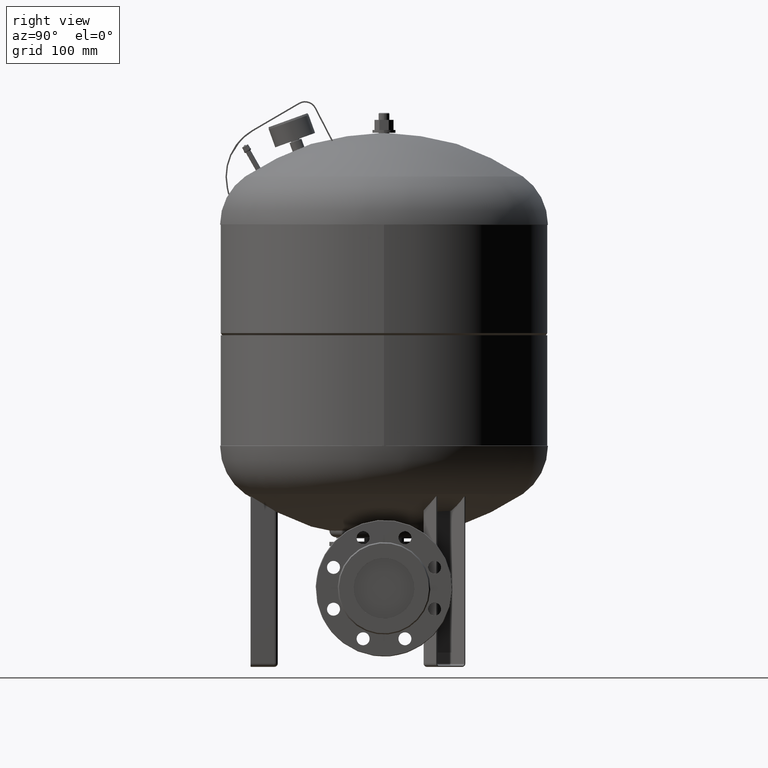
[diagram: clean part render]
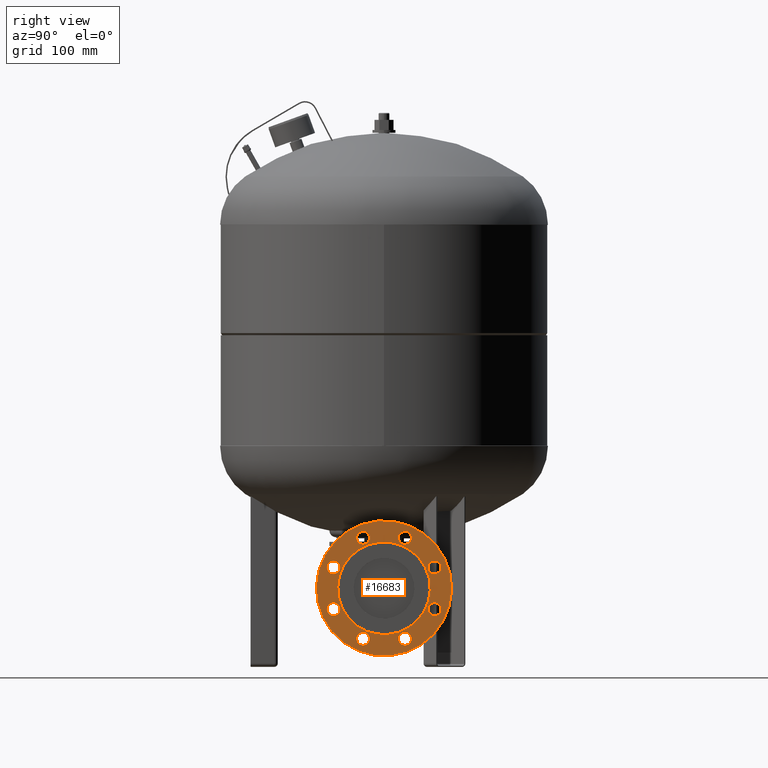
[diagram: same view with one face highlighted and labeled with its STEP entity id]
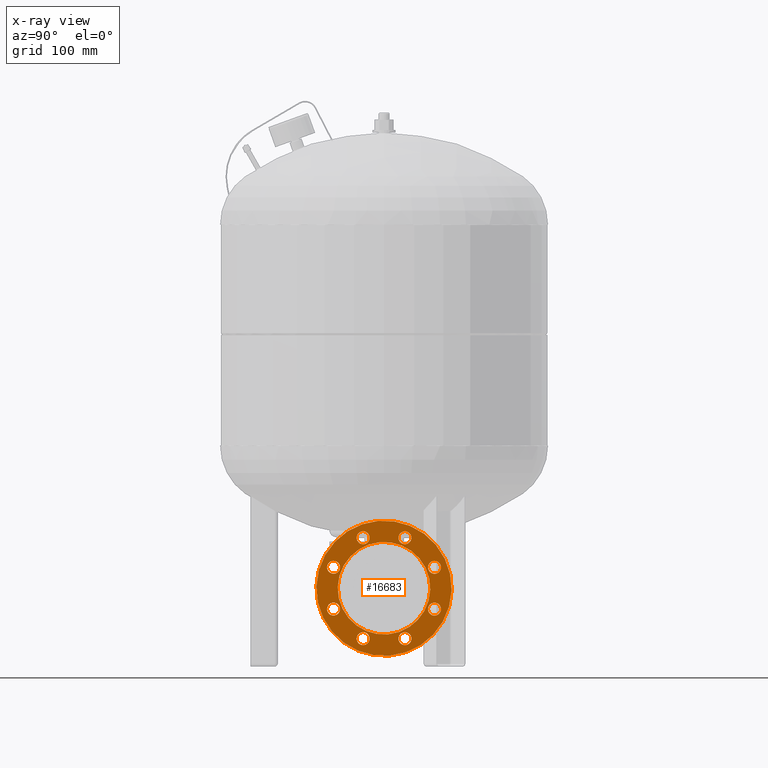
[diagram: x-ray of the same camera — body ghosted, the highlighted face saturated]
A machine part, right view. The second image highlights one B-rep face of the part: STEP entity #16683.
The next image is the same camera in x-ray: the body ghosted, the highlighted face saturated — about 0% of this face is hidden behind the body in this view.
In plain terms, the highlighted planar face has unit normal (1, 0, 0).
Its self-contained STEP definition (entity closure, byte-faithful):
#15883=CARTESIAN_POINT('',(212.0,-25.919933684167113,52.423744563872539));
#15884=VERTEX_POINT('',#15883);
#15893=CARTESIAN_POINT('',(212.0,25.919933684167116,177.576255436127440));
#15894=VERTEX_POINT('',#15893);
#15895=CARTESIAN_POINT('',(212.0,2.108865E-016,115.0));
#15896=DIRECTION('',(1.0,-7.029548E-017,-1.697083E-016));
#15897=DIRECTION('',(-1.836910E-016,-0.382683432365090,-0.923879532511287));
#15898=AXIS2_PLACEMENT_3D('',#15895,#15896,#15897);
#15899=CIRCLE('',#15898,67.732050807568882);
#15900=EDGE_CURVE('',#15884,#15894,#15899,.T.);
#15927=CARTESIAN_POINT('',(212.0,-34.250167196675491,180.133507042045720));
#15928=VERTEX_POINT('',#15927);
#15944=CARTESIAN_POINT('',(212.0,-26.979181981738783,197.687218159760160));
#15945=VERTEX_POINT('',#15944);
#15952=CARTESIAN_POINT('',(212.0,-30.614674589207137,188.910362600902940));
#15953=DIRECTION('',(-1.000000000000000,7.029548E-017,1.697083E-016));
#15954=DIRECTION('',(-1.836910E-016,-0.382683432365090,-0.923879532511287));
#15955=AXIS2_PLACEMENT_3D('',#15952,#15953,#15954);
#15956=CIRCLE('',#15955,9.500000000000000);
#15957=EDGE_CURVE('',#15928,#15945,#15956,.T.);
#15969=CARTESIAN_POINT('',(212.0,-77.545855208371279,136.837819030350000));
#15970=VERTEX_POINT('',#15969);
#15986=CARTESIAN_POINT('',(212.0,-70.274869993434578,154.391530148064450));
#15987=VERTEX_POINT('',#15986);
#15994=CARTESIAN_POINT('',(212.0,-73.910362600902928,145.614674589207230));
#15995=DIRECTION('',(-1.000000000000000,7.029548E-017,1.697083E-016));
#15996=DIRECTION('',(-1.836910E-016,-0.382683432365090,-0.923879532511287));
#15997=AXIS2_PLACEMENT_3D('',#15994,#15995,#15996);
#15998=CIRCLE('',#15997,9.500000000000000);
#15999=EDGE_CURVE('',#15970,#15987,#15998,.T.);
#16011=CARTESIAN_POINT('',(212.0,-77.545855208371307,75.608469851935624));
#16012=VERTEX_POINT('',#16011);
#16028=CARTESIAN_POINT('',(212.0,-70.274869993434606,93.162180969650080));
#16029=VERTEX_POINT('',#16028);
#16036=CARTESIAN_POINT('',(212.0,-73.910362600902957,84.385325410792859));
#16037=DIRECTION('',(-1.000000000000000,7.029548E-017,1.697083E-016));
#16038=DIRECTION('',(-1.836910E-016,-0.382683432365090,-0.923879532511287));
#16039=AXIS2_PLACEMENT_3D('',#16036,#16037,#16038);
#16040=CIRCLE('',#16039,9.500000000000000);
#16041=EDGE_CURVE('',#16012,#16029,#16040,.T.);
#16053=CARTESIAN_POINT('',(211.999999999999970,-34.250167196675619,32.312781840239865));
#16054=VERTEX_POINT('',#16053);
#16070=CARTESIAN_POINT('',(212.0,-26.979181981738918,49.866492957954307));
#16071=VERTEX_POINT('',#16070);
#16078=CARTESIAN_POINT('',(212.0,-30.614674589207269,41.089637399097086));
#16079=DIRECTION('',(-1.000000000000000,7.029548E-017,1.697083E-016));
#16080=DIRECTION('',(-1.836910E-016,-0.382683432365090,-0.923879532511287));
#16081=AXIS2_PLACEMENT_3D('',#16078,#16079,#16080);
#16082=CIRCLE('',#16081,9.500000000000000);
#16083=EDGE_CURVE('',#16054,#16071,#16082,.T.);
#16095=CARTESIAN_POINT('',(212.0,26.979181981738751,32.312781840239808));
#16096=VERTEX_POINT('',#16095);
#16112=CARTESIAN_POINT('',(212.0,34.250167196675456,49.866492957954250));
#16113=VERTEX_POINT('',#16112);
#16120=CARTESIAN_POINT('',(212.0,30.614674589207102,41.089637399097029));
#16121=DIRECTION('',(-1.000000000000000,7.029548E-017,1.697083E-016));
#16122=DIRECTION('',(-1.836910E-016,-0.382683432365090,-0.923879532511287));
#16123=AXIS2_PLACEMENT_3D('',#16120,#16121,#16122);
#16124=CIRCLE('',#16123,9.500000000000000);
#16125=EDGE_CURVE('',#16096,#16113,#16124,.T.);
#16137=CARTESIAN_POINT('',(212.0,70.274869993434592,75.608469851935581));
#16138=VERTEX_POINT('',#16137);
#16154=CARTESIAN_POINT('',(212.0,77.545855208371293,93.162180969650038));
#16155=VERTEX_POINT('',#16154);
#16162=CARTESIAN_POINT('',(212.0,73.910362600902943,84.385325410792817));
#16163=DIRECTION('',(-1.000000000000000,7.029548E-017,1.697083E-016));
#16164=DIRECTION('',(-1.836910E-016,-0.382683432365090,-0.923879532511287));
#16165=AXIS2_PLACEMENT_3D('',#16162,#16163,#16164);
#16166=CIRCLE('',#16165,9.500000000000000);
#16167=EDGE_CURVE('',#16138,#16155,#16166,.T.);
#16179=CARTESIAN_POINT('',(212.0,70.274869993434592,136.837819030349950));
#16180=VERTEX_POINT('',#16179);
#16196=CARTESIAN_POINT('',(212.0,77.545855208371293,154.391530148064390));
#16197=VERTEX_POINT('',#16196);
#16204=CARTESIAN_POINT('',(212.0,73.910362600902943,145.614674589207170));
#16205=DIRECTION('',(-1.000000000000000,7.029548E-017,1.697083E-016));
#16206=DIRECTION('',(-1.836910E-016,-0.382683432365090,-0.923879532511287));
#16207=AXIS2_PLACEMENT_3D('',#16204,#16205,#16206);
#16208=CIRCLE('',#16207,9.500000000000000);
#16209=EDGE_CURVE('',#16180,#16197,#16208,.T.);
#16221=CARTESIAN_POINT('',(212.0,26.979181981738854,180.133507042045720));
#16222=VERTEX_POINT('',#16221);
#16238=CARTESIAN_POINT('',(212.0,34.250167196675562,197.687218159760160));
#16239=VERTEX_POINT('',#16238);
#16246=CARTESIAN_POINT('',(212.0,30.614674589207208,188.910362600902940));
#16247=DIRECTION('',(-1.000000000000000,7.029548E-017,1.697083E-016));
#16248=DIRECTION('',(-1.836910E-016,-0.382683432365090,-0.923879532511287));
#16249=AXIS2_PLACEMENT_3D('',#16246,#16247,#16248);
#16250=CIRCLE('',#16249,9.500000000000000);
#16251=EDGE_CURVE('',#16222,#16239,#16250,.T.);
#16314=CARTESIAN_POINT('',(212.000000000000030,37.885659804143884,206.464073718617390));
#16315=VERTEX_POINT('',#16314);
#16332=CARTESIAN_POINT('',(211.999999999999970,-37.885659804143891,23.535926281382615));
#16333=VERTEX_POINT('',#16332);
#16341=CARTESIAN_POINT('',(212.0,2.108865E-016,115.0));
#16342=DIRECTION('',(-1.0,7.029548E-017,1.697083E-016));
#16343=DIRECTION('',(1.836910E-016,0.382683432365096,0.923879532511284));
#16344=AXIS2_PLACEMENT_3D('',#16341,#16342,#16343);
#16345=CIRCLE('',#16344,98.999999999999986);
#16346=EDGE_CURVE('',#16333,#16315,#16345,.T.);
#16572=CARTESIAN_POINT('',(212.0,2.108865E-016,115.0));
#16573=DIRECTION('',(-1.0,7.029548E-017,1.697083E-016));
#16574=DIRECTION('',(1.836910E-016,0.382683432365096,0.923879532511284));
#16575=AXIS2_PLACEMENT_3D('',#16572,#16573,#16574);
#16576=CIRCLE('',#16575,98.999999999999986);
#16577=EDGE_CURVE('',#16315,#16333,#16576,.T.);
#16584=CARTESIAN_POINT('',(211.999999999999970,-38.268343236508976,22.612046748871322));
#16585=DIRECTION('',(1.0,0.0,0.0));
#16586=DIRECTION('',(0.0,-0.382683432365090,-0.923879532511287));
#16587=AXIS2_PLACEMENT_3D('',#16584,#16585,#16586);
#16588=PLANE('',#16587);
#16589=ORIENTED_EDGE('',*,*,#16346,.F.);
#16590=ORIENTED_EDGE('',*,*,#16577,.F.);
#16591=EDGE_LOOP('',(#16589,#16590));
#16592=FACE_OUTER_BOUND('',#16591,.T.);
#16593=ORIENTED_EDGE('',*,*,#15900,.F.);
#16594=CARTESIAN_POINT('',(212.0,2.108865E-016,115.0));
#16595=DIRECTION('',(1.0,-7.029548E-017,-1.697083E-016));
#16596=DIRECTION('',(-1.836910E-016,-0.382683432365090,-0.923879532511287));
#16597=AXIS2_PLACEMENT_3D('',#16594,#16595,#16596);
#16598=CIRCLE('',#16597,67.732050807568882);
#16599=EDGE_CURVE('',#15894,#15884,#16598,.T.);
#16600=ORIENTED_EDGE('',*,*,#16599,.F.);
#16601=EDGE_LOOP('',(#16593,#16600));
#16602=FACE_BOUND('',#16601,.T.);
#16603=ORIENTED_EDGE('',*,*,#15957,.T.);
#16604=CARTESIAN_POINT('',(212.0,-30.614674589207137,188.910362600902940));
#16605=DIRECTION('',(-1.000000000000000,7.029548E-017,1.697083E-016));
#16606=DIRECTION('',(-1.836910E-016,-0.382683432365090,-0.923879532511287));
#16607=AXIS2_PLACEMENT_3D('',#16604,#16605,#16606);
#16608=CIRCLE('',#16607,9.500000000000000);
#16609=EDGE_CURVE('',#15945,#15928,#16608,.T.);
#16610=ORIENTED_EDGE('',*,*,#16609,.T.);
#16611=EDGE_LOOP('',(#16603,#16610));
#16612=FACE_BOUND('',#16611,.T.);
#16613=ORIENTED_EDGE('',*,*,#15999,.T.);
#16614=CARTESIAN_POINT('',(212.0,-73.910362600902928,145.614674589207230));
#16615=DIRECTION('',(-1.000000000000000,7.029548E-017,1.697083E-016));
#16616=DIRECTION('',(-1.836910E-016,-0.382683432365090,-0.923879532511287));
#16617=AXIS2_PLACEMENT_3D('',#16614,#16615,#16616);
#16618=CIRCLE('',#16617,9.500000000000000);
#16619=EDGE_CURVE('',#15987,#15970,#16618,.T.);
#16620=ORIENTED_EDGE('',*,*,#16619,.T.);
#16621=EDGE_LOOP('',(#16613,#16620));
#16622=FACE_BOUND('',#16621,.T.);
#16623=ORIENTED_EDGE('',*,*,#16041,.T.);
#16624=CARTESIAN_POINT('',(212.0,-73.910362600902957,84.385325410792859));
#16625=DIRECTION('',(-1.000000000000000,7.029548E-017,1.697083E-016));
#16626=DIRECTION('',(-1.836910E-016,-0.382683432365090,-0.923879532511287));
#16627=AXIS2_PLACEMENT_3D('',#16624,#16625,#16626);
#16628=CIRCLE('',#16627,9.500000000000000);
#16629=EDGE_CURVE('',#16029,#16012,#16628,.T.);
#16630=ORIENTED_EDGE('',*,*,#16629,.T.);
#16631=EDGE_LOOP('',(#16623,#16630));
#16632=FACE_BOUND('',#16631,.T.);
#16633=ORIENTED_EDGE('',*,*,#16083,.T.);
#16634=CARTESIAN_POINT('',(212.0,-30.614674589207269,41.089637399097086));
#16635=DIRECTION('',(-1.000000000000000,7.029548E-017,1.697083E-016));
#16636=DIRECTION('',(-1.836910E-016,-0.382683432365090,-0.923879532511287));
#16637=AXIS2_PLACEMENT_3D('',#16634,#16635,#16636);
#16638=CIRCLE('',#16637,9.500000000000000);
#16639=EDGE_CURVE('',#16071,#16054,#16638,.T.);
#16640=ORIENTED_EDGE('',*,*,#16639,.T.);
#16641=EDGE_LOOP('',(#16633,#16640));
#16642=FACE_BOUND('',#16641,.T.);
#16643=ORIENTED_EDGE('',*,*,#16125,.T.);
#16644=CARTESIAN_POINT('',(212.0,30.614674589207102,41.089637399097029));
#16645=DIRECTION('',(-1.000000000000000,7.029548E-017,1.697083E-016));
#16646=DIRECTION('',(-1.836910E-016,-0.382683432365090,-0.923879532511287));
#16647=AXIS2_PLACEMENT_3D('',#16644,#16645,#16646);
#16648=CIRCLE('',#16647,9.500000000000000);
#16649=EDGE_CURVE('',#16113,#16096,#16648,.T.);
#16650=ORIENTED_EDGE('',*,*,#16649,.T.);
#16651=EDGE_LOOP('',(#16643,#16650));
#16652=FACE_BOUND('',#16651,.T.);
#16653=ORIENTED_EDGE('',*,*,#16167,.T.);
#16654=CARTESIAN_POINT('',(212.0,73.910362600902943,84.385325410792817));
#16655=DIRECTION('',(-1.000000000000000,7.029548E-017,1.697083E-016));
#16656=DIRECTION('',(-1.836910E-016,-0.382683432365090,-0.923879532511287));
#16657=AXIS2_PLACEMENT_3D('',#16654,#16655,#16656);
#16658=CIRCLE('',#16657,9.500000000000000);
#16659=EDGE_CURVE('',#16155,#16138,#16658,.T.);
#16660=ORIENTED_EDGE('',*,*,#16659,.T.);
#16661=EDGE_LOOP('',(#16653,#16660));
#16662=FACE_BOUND('',#16661,.T.);
#16663=ORIENTED_EDGE('',*,*,#16209,.T.);
#16664=CARTESIAN_POINT('',(212.0,73.910362600902943,145.614674589207170));
#16665=DIRECTION('',(-1.000000000000000,7.029548E-017,1.697083E-016));
#16666=DIRECTION('',(-1.836910E-016,-0.382683432365090,-0.923879532511287));
#16667=AXIS2_PLACEMENT_3D('',#16664,#16665,#16666);
#16668=CIRCLE('',#16667,9.500000000000000);
#16669=EDGE_CURVE('',#16197,#16180,#16668,.T.);
#16670=ORIENTED_EDGE('',*,*,#16669,.T.);
#16671=EDGE_LOOP('',(#16663,#16670));
#16672=FACE_BOUND('',#16671,.T.);
#16673=ORIENTED_EDGE('',*,*,#16251,.T.);
#16674=CARTESIAN_POINT('',(212.0,30.614674589207208,188.910362600902940));
#16675=DIRECTION('',(-1.000000000000000,7.029548E-017,1.697083E-016));
#16676=DIRECTION('',(-1.836910E-016,-0.382683432365090,-0.923879532511287));
#16677=AXIS2_PLACEMENT_3D('',#16674,#16675,#16676);
#16678=CIRCLE('',#16677,9.500000000000000);
#16679=EDGE_CURVE('',#16239,#16222,#16678,.T.);
#16680=ORIENTED_EDGE('',*,*,#16679,.T.);
#16681=EDGE_LOOP('',(#16673,#16680));
#16682=FACE_BOUND('',#16681,.T.);
#16683=ADVANCED_FACE('',(#16592,#16602,#16612,#16622,#16632,#16642,#16652,#16662,#16672,#16682),#16588,.T.);